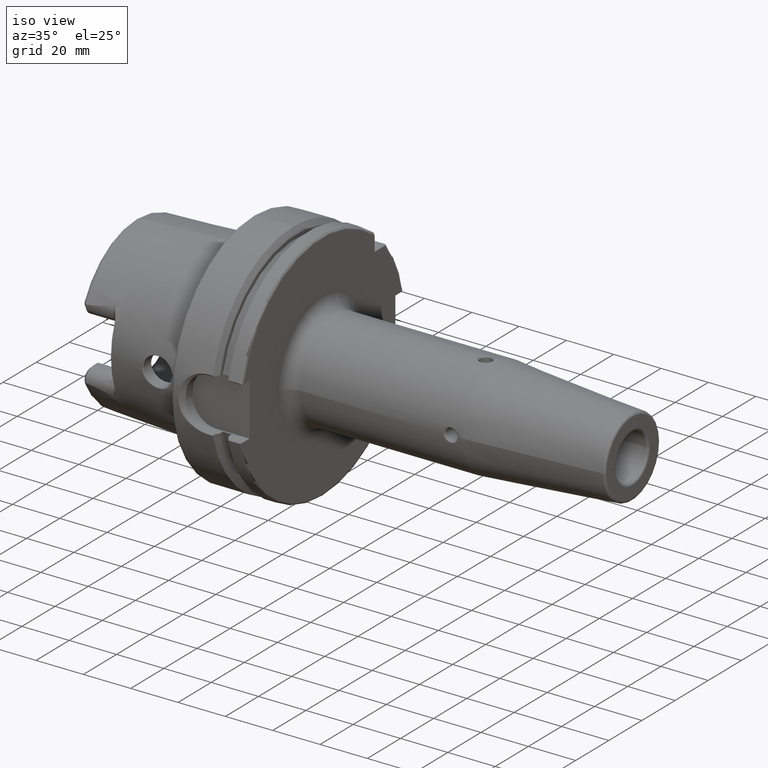
[diagram: clean part render]
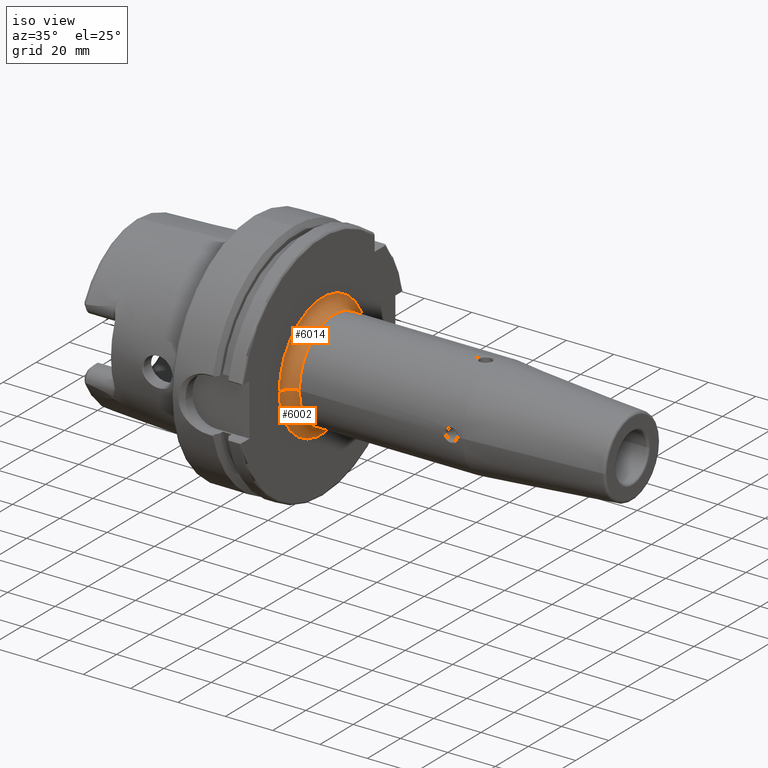
[diagram: same view with one multi-face feature highlighted, each face labeled with its STEP entity id]
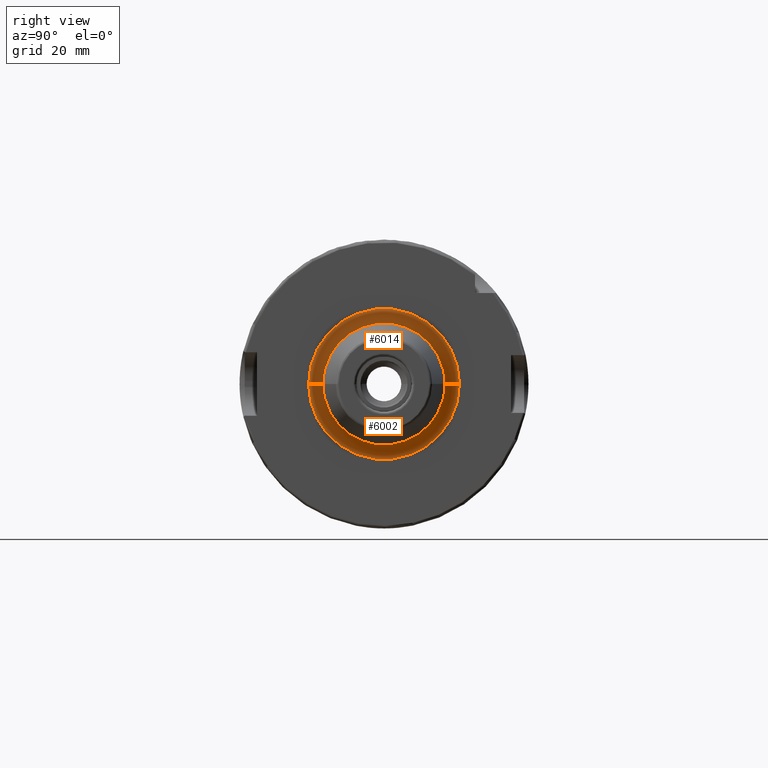
[diagram: same view with one multi-face feature highlighted, each face labeled with its STEP entity id]
A machine part, iso view. The highlighted faces form ONE feature: a constant-radius fillet chain: 2 tangent blend faces with common blend radius 5 mm. The faces share edges in the B-rep.
A second angle (right view) of the same feature is appended — it is thin or edge-on in the first view.
Their STEP definitions:
[1] entity #6014 (Torus):
#1687=CARTESIAN_POINT('',(2.9E1,0.E0,0.E0));
#1688=DIRECTION('',(1.E0,0.E0,0.E0));
#1689=DIRECTION('',(0.E0,1.E0,0.E0));
#1690=AXIS2_PLACEMENT_3D('',#1687,#1688,#1689);
#2514=CARTESIAN_POINT('',(3.4E1,-2.610969713780E1,0.E0));
#2515=DIRECTION('',(0.E0,0.E0,1.E0));
#2516=DIRECTION('',(0.E0,1.E0,0.E0));
#2517=AXIS2_PLACEMENT_3D('',#2514,#2515,#2516);
#2524=CARTESIAN_POINT('',(3.4E1,2.610969713780E1,0.E0));
#2525=DIRECTION('',(0.E0,0.E0,-1.E0));
#2526=DIRECTION('',(0.E0,-1.E0,0.E0));
#2527=AXIS2_PLACEMENT_3D('',#2524,#2525,#2526);
#2529=CARTESIAN_POINT('',(3.4E1,0.E0,0.E0));
#2530=DIRECTION('',(1.E0,0.E0,0.E0));
#2531=DIRECTION('',(0.E0,1.E0,0.E0));
#2532=AXIS2_PLACEMENT_3D('',#2529,#2530,#2531);
#3211=CARTESIAN_POINT('',(3.4E1,2.110969713780E1,0.E0));
#3212=CARTESIAN_POINT('',(3.4E1,-2.110969713780E1,0.E0));
#3213=VERTEX_POINT('',#3211);
#3214=VERTEX_POINT('',#3212);
#3219=CARTESIAN_POINT('',(2.9E1,2.610969713780E1,0.E0));
#3220=CARTESIAN_POINT('',(2.9E1,-2.610969713780E1,0.E0));
#3221=VERTEX_POINT('',#3219);
#3222=VERTEX_POINT('',#3220);
#6003=CARTESIAN_POINT('',(3.4E1,0.E0,0.E0));
#6004=DIRECTION('',(1.E0,0.E0,0.E0));
#6005=DIRECTION('',(0.E0,-1.E0,0.E0));
#6006=AXIS2_PLACEMENT_3D('',#6003,#6004,#6005);
#6007=TOROIDAL_SURFACE('',#6006,2.610969713780E1,5.E0);
#6008=ORIENTED_EDGE('',*,*,#5043,.F.);
#6009=ORIENTED_EDGE('',*,*,#5998,.F.);
#6010=ORIENTED_EDGE('',*,*,#5836,.T.);
#6011=ORIENTED_EDGE('',*,*,#5995,.T.);
#6012=EDGE_LOOP('',(#6008,#6009,#6010,#6011));
#6013=FACE_OUTER_BOUND('',#6012,.F.);
#6014=ADVANCED_FACE('',(#6013),#6007,.F.);
#1691=CIRCLE('',#1690,2.610969713780E1);
#2518=CIRCLE('',#2517,5.E0);
#2528=CIRCLE('',#2527,5.E0);
#2533=CIRCLE('',#2532,2.110969713780E1);
#5043=EDGE_CURVE('',#3221,#3222,#1691,.T.);
#5836=EDGE_CURVE('',#3213,#3214,#2533,.T.);
#5995=EDGE_CURVE('',#3214,#3222,#2518,.T.);
#5998=EDGE_CURVE('',#3213,#3221,#2528,.T.);
[2] entity #6002 (Torus):
#1692=CARTESIAN_POINT('',(2.9E1,0.E0,0.E0));
#1693=DIRECTION('',(1.E0,0.E0,0.E0));
#1694=DIRECTION('',(0.E0,-1.E0,0.E0));
#1695=AXIS2_PLACEMENT_3D('',#1692,#1693,#1694);
#2514=CARTESIAN_POINT('',(3.4E1,-2.610969713780E1,0.E0));
#2515=DIRECTION('',(0.E0,0.E0,1.E0));
#2516=DIRECTION('',(0.E0,1.E0,0.E0));
#2517=AXIS2_PLACEMENT_3D('',#2514,#2515,#2516);
#2519=CARTESIAN_POINT('',(3.4E1,0.E0,0.E0));
#2520=DIRECTION('',(-1.E0,0.E0,0.E0));
#2521=DIRECTION('',(0.E0,1.E0,0.E0));
#2522=AXIS2_PLACEMENT_3D('',#2519,#2520,#2521);
#2524=CARTESIAN_POINT('',(3.4E1,2.610969713780E1,0.E0));
#2525=DIRECTION('',(0.E0,0.E0,-1.E0));
#2526=DIRECTION('',(0.E0,-1.E0,0.E0));
#2527=AXIS2_PLACEMENT_3D('',#2524,#2525,#2526);
#3211=CARTESIAN_POINT('',(3.4E1,2.110969713780E1,0.E0));
#3212=CARTESIAN_POINT('',(3.4E1,-2.110969713780E1,0.E0));
#3213=VERTEX_POINT('',#3211);
#3214=VERTEX_POINT('',#3212);
#3219=CARTESIAN_POINT('',(2.9E1,2.610969713780E1,0.E0));
#3220=CARTESIAN_POINT('',(2.9E1,-2.610969713780E1,0.E0));
#3221=VERTEX_POINT('',#3219);
#3222=VERTEX_POINT('',#3220);
#5989=CARTESIAN_POINT('',(3.4E1,0.E0,0.E0));
#5990=DIRECTION('',(1.E0,0.E0,0.E0));
#5991=DIRECTION('',(0.E0,-1.E0,0.E0));
#5992=AXIS2_PLACEMENT_3D('',#5989,#5990,#5991);
#5993=TOROIDAL_SURFACE('',#5992,2.610969713780E1,5.E0);
#5994=ORIENTED_EDGE('',*,*,#5045,.F.);
#5996=ORIENTED_EDGE('',*,*,#5995,.F.);
#5997=ORIENTED_EDGE('',*,*,#5897,.F.);
#5999=ORIENTED_EDGE('',*,*,#5998,.T.);
#6000=EDGE_LOOP('',(#5994,#5996,#5997,#5999));
#6001=FACE_OUTER_BOUND('',#6000,.F.);
#6002=ADVANCED_FACE('',(#6001),#5993,.F.);
#1696=CIRCLE('',#1695,2.610969713780E1);
#2518=CIRCLE('',#2517,5.E0);
#2523=CIRCLE('',#2522,2.110969713780E1);
#2528=CIRCLE('',#2527,5.E0);
#5045=EDGE_CURVE('',#3222,#3221,#1696,.T.);
#5897=EDGE_CURVE('',#3213,#3214,#2523,.T.);
#5995=EDGE_CURVE('',#3214,#3222,#2518,.T.);
#5998=EDGE_CURVE('',#3213,#3221,#2528,.T.);